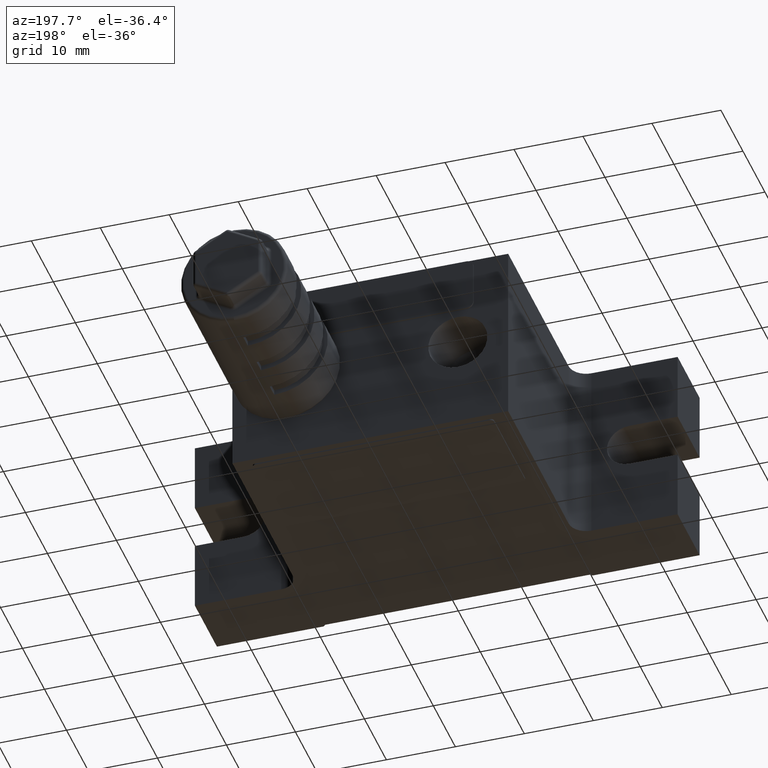
[diagram: clean part render]
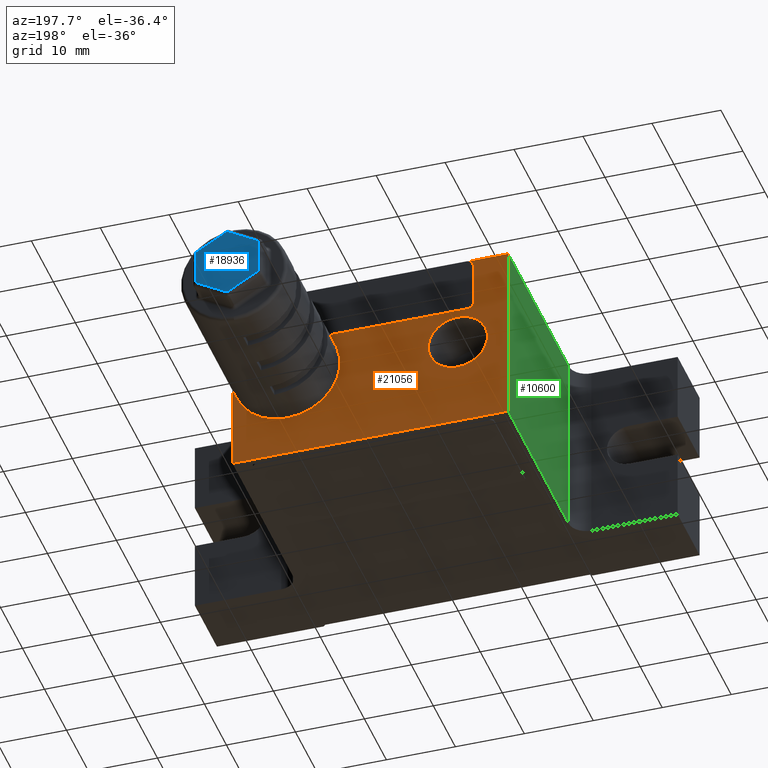
[diagram: same view with three faces highlighted in distinct colors, each labeled with its STEP entity id]
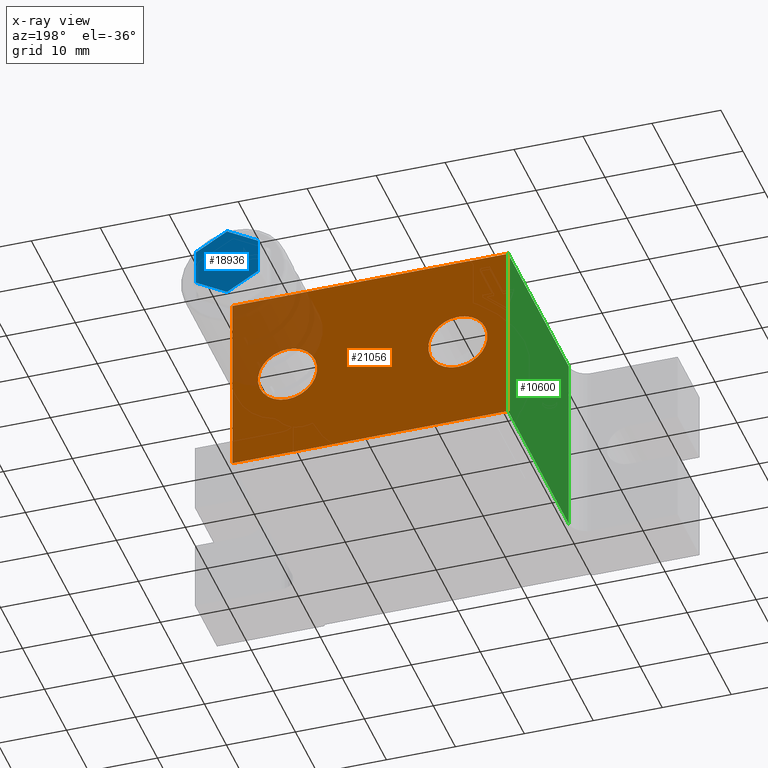
[diagram: x-ray of the same camera — body ghosted, the three highlighted faces saturated]
A machine part, auxiliary view with three faces highlighted in distinct colors.
The next image is the same camera in x-ray (body ghosted, the three faces saturated) — at least one of them is partly hidden behind the body in this view.
Their STEP definitions:

[orange] entity #21056 — the highlighted planar face has unit normal (0, -1, 0).
#318 = DIRECTION ( 'NONE',  ( 0.0000000000000000000, 0.0000000000000000000, 1.000000000000000000 ) ) ;
#451 = VERTEX_POINT ( 'NONE', #15469 ) ;
#476 = CARTESIAN_POINT ( 'NONE',  ( -20.00000000000000000, 20.00000000000000000, 13.50000000000000000 ) ) ;
#693 = CARTESIAN_POINT ( 'NONE',  ( -12.69999999999999900, 20.00000000000000000, 0.0000000000000000000 ) ) ;
#740 = DIRECTION ( 'NONE',  ( 0.0000000000000000000, 0.0000000000000000000, 1.000000000000000000 ) ) ;
#1113 = CARTESIAN_POINT ( 'NONE',  ( -12.69999999999999900, 20.00000000000000000, -4.283000000000000400 ) ) ;
#1325 = VECTOR ( 'NONE', #16556, 1000.000000000000000 ) ;
#1367 = LINE ( 'NONE', #13617, #14176 ) ;
#1622 = EDGE_CURVE ( 'NONE', #20065, #451, #1367, .T. ) ;
#2252 = DIRECTION ( 'NONE',  ( 0.0000000000000000000, 1.000000000000000000, 0.0000000000000000000 ) ) ;
#2981 = CARTESIAN_POINT ( 'NONE',  ( -35.00000000000000000, 20.00000000000000000, 13.50000000000000000 ) ) ;
#3359 = EDGE_CURVE ( 'NONE', #14530, #14337, #6136, .T. ) ;
#3546 = CARTESIAN_POINT ( 'NONE',  ( -35.00000000000000000, 20.00000000000000000, 13.50000000000000000 ) ) ;
#3599 = AXIS2_PLACEMENT_3D ( 'NONE', #21668, #10616, #10543 ) ;
#3891 = VERTEX_POINT ( 'NONE', #12279 ) ;
#4039 = ORIENTED_EDGE ( 'NONE', *, *, #15320, .F. ) ;
#4197 = VECTOR ( 'NONE', #4684, 1000.000000000000000 ) ;
#4406 = VERTEX_POINT ( 'NONE', #476 ) ;
#4684 = DIRECTION ( 'NONE',  ( -1.000000000000000000, 0.0000000000000000000, 0.0000000000000000000 ) ) ;
#5612 = LINE ( 'NONE', #2981, #4197 ) ;
#5635 = EDGE_CURVE ( 'NONE', #20536, #4406, #14415, .T. ) ;
#6136 = CIRCLE ( 'NONE', #14392, 4.283000000000000400 ) ;
#6434 = EDGE_LOOP ( 'NONE', ( #4039, #20751, #18078, #17371 ) ) ;
#7009 = FACE_OUTER_BOUND ( 'NONE', #6434, .T. ) ;
#7336 = DIRECTION ( 'NONE',  ( 0.0000000000000000000, 0.0000000000000000000, -1.000000000000000000 ) ) ;
#8173 = CIRCLE ( 'NONE', #3599, 4.283000000000000400 ) ;
#8726 = DIRECTION ( 'NONE',  ( -1.000000000000000000, 0.0000000000000000000, 0.0000000000000000000 ) ) ;
#8962 = EDGE_CURVE ( 'NONE', #3891, #9326, #12260, .T. ) ;
#9154 = ORIENTED_EDGE ( 'NONE', *, *, #13190, .F. ) ;
#9326 = VERTEX_POINT ( 'NONE', #22069 ) ;
#9530 = EDGE_LOOP ( 'NONE', ( #13745, #21997 ) ) ;
#10543 = DIRECTION ( 'NONE',  ( 0.0000000000000000000, 0.0000000000000000000, 1.000000000000000000 ) ) ;
#10616 = DIRECTION ( 'NONE',  ( 0.0000000000000000000, 1.000000000000000000, 0.0000000000000000000 ) ) ;
#10895 = PLANE ( 'NONE',  #15391 ) ;
#12260 = CIRCLE ( 'NONE', #12794, 4.283000000000000400 ) ;
#12279 = CARTESIAN_POINT ( 'NONE',  ( 12.00000000000000000, 20.00000000000000000, -4.283000000000000400 ) ) ;
#12794 = AXIS2_PLACEMENT_3D ( 'NONE', #16778, #22324, #318 ) ;
#13190 = EDGE_CURVE ( 'NONE', #14337, #14530, #19997, .T. ) ;
#13271 = LINE ( 'NONE', #23499, #15588 ) ;
#13503 = DIRECTION ( 'NONE',  ( 0.0000000000000000000, 1.000000000000000000, 0.0000000000000000000 ) ) ;
#13617 = CARTESIAN_POINT ( 'NONE',  ( 20.00000000000000000, 20.00000000000000000, -13.50000000000000000 ) ) ;
#13745 = ORIENTED_EDGE ( 'NONE', *, *, #14997, .F. ) ;
#14176 = VECTOR ( 'NONE', #19040, 1000.000000000000000 ) ;
#14337 = VERTEX_POINT ( 'NONE', #1113 ) ;
#14350 = DIRECTION ( 'NONE',  ( 0.0000000000000000000, -1.000000000000000000, 0.0000000000000000000 ) ) ;
#14392 = AXIS2_PLACEMENT_3D ( 'NONE', #22583, #2252, #740 ) ;
#14415 = LINE ( 'NONE', #20185, #1325 ) ;
#14486 = CARTESIAN_POINT ( 'NONE',  ( 20.00000000000000000, 20.00000000000000000, -13.50000000000000000 ) ) ;
#14530 = VERTEX_POINT ( 'NONE', #17678 ) ;
#14997 = EDGE_CURVE ( 'NONE', #9326, #3891, #8173, .T. ) ;
#15266 = FACE_BOUND ( 'NONE', #15786, .T. ) ;
#15320 = EDGE_CURVE ( 'NONE', #451, #4406, #5612, .T. ) ;
#15391 = AXIS2_PLACEMENT_3D ( 'NONE', #3546, #14350, #7336 ) ;
#15469 = CARTESIAN_POINT ( 'NONE',  ( 20.00000000000000000, 20.00000000000000000, 13.50000000000000000 ) ) ;
#15588 = VECTOR ( 'NONE', #8726, 1000.000000000000000 ) ;
#15786 = EDGE_LOOP ( 'NONE', ( #18308, #9154 ) ) ;
#16556 = DIRECTION ( 'NONE',  ( 0.0000000000000000000, 0.0000000000000000000, 1.000000000000000000 ) ) ;
#16778 = CARTESIAN_POINT ( 'NONE',  ( 12.00000000000000000, 20.00000000000000000, 0.0000000000000000000 ) ) ;
#16807 = AXIS2_PLACEMENT_3D ( 'NONE', #693, #13503, #20877 ) ;
#17371 = ORIENTED_EDGE ( 'NONE', *, *, #5635, .T. ) ;
#17678 = CARTESIAN_POINT ( 'NONE',  ( -12.69999999999999900, 20.00000000000000000, 4.283000000000000400 ) ) ;
#18078 = ORIENTED_EDGE ( 'NONE', *, *, #20438, .T. ) ;
#18308 = ORIENTED_EDGE ( 'NONE', *, *, #3359, .F. ) ;
#19040 = DIRECTION ( 'NONE',  ( 0.0000000000000000000, 0.0000000000000000000, 1.000000000000000000 ) ) ;
#19997 = CIRCLE ( 'NONE', #16807, 4.283000000000000400 ) ;
#20055 = CARTESIAN_POINT ( 'NONE',  ( -20.00000000000000000, 20.00000000000000000, -13.50000000000000000 ) ) ;
#20065 = VERTEX_POINT ( 'NONE', #14486 ) ;
#20185 = CARTESIAN_POINT ( 'NONE',  ( -20.00000000000000000, 20.00000000000000000, -13.50000000000000000 ) ) ;
#20438 = EDGE_CURVE ( 'NONE', #20065, #20536, #13271, .T. ) ;
#20536 = VERTEX_POINT ( 'NONE', #20055 ) ;
#20751 = ORIENTED_EDGE ( 'NONE', *, *, #1622, .F. ) ;
#20877 = DIRECTION ( 'NONE',  ( 0.0000000000000000000, 0.0000000000000000000, 1.000000000000000000 ) ) ;
#21056 = ADVANCED_FACE ( 'NONE', ( #22983, #15266, #7009 ), #10895, .F. ) ;
#21668 = CARTESIAN_POINT ( 'NONE',  ( 12.00000000000000000, 20.00000000000000000, 0.0000000000000000000 ) ) ;
#21997 = ORIENTED_EDGE ( 'NONE', *, *, #8962, .F. ) ;
#22069 = CARTESIAN_POINT ( 'NONE',  ( 12.00000000000000000, 20.00000000000000000, 4.283000000000000400 ) ) ;
#22324 = DIRECTION ( 'NONE',  ( 0.0000000000000000000, 1.000000000000000000, 0.0000000000000000000 ) ) ;
#22583 = CARTESIAN_POINT ( 'NONE',  ( -12.69999999999999900, 20.00000000000000000, 0.0000000000000000000 ) ) ;
#22983 = FACE_BOUND ( 'NONE', #9530, .T. ) ;
#23499 = CARTESIAN_POINT ( 'NONE',  ( -35.00000000000000000, 20.00000000000000000, -13.50000000000000000 ) ) ;

[blue] entity #18936 — the highlighted planar face has unit normal (0, -1, 0).
#71 = ORIENTED_EDGE ( 'NONE', *, *, #8122, .T. ) ;
#104 = CARTESIAN_POINT ( 'NONE',  ( 19.25000000000000000, 47.50000000000000000, 1.010362971081816100 ) ) ;
#392 = DIRECTION ( 'NONE',  ( -2.983724378680110200E-016, 2.111368100172629900E-017, 1.000000000000000000 ) ) ;
#697 = ORIENTED_EDGE ( 'NONE', *, *, #3444, .T. ) ;
#1179 = CARTESIAN_POINT ( 'NONE',  ( 12.00000000000000000, 47.50000000000000000, -5.196152422706670200 ) ) ;
#1582 = VECTOR ( 'NONE', #13547, 999.9999999999998900 ) ;
#1605 = EDGE_CURVE ( 'NONE', #3137, #15630, #7058, .T. ) ;
#2899 = LINE ( 'NONE', #11800, #21743 ) ;
#3137 = VERTEX_POINT ( 'NONE', #7060 ) ;
#3444 = EDGE_CURVE ( 'NONE', #15630, #11893, #15249, .T. ) ;
#5000 = LINE ( 'NONE', #6758, #14394 ) ;
#5182 = CARTESIAN_POINT ( 'NONE',  ( 7.500000000000000000, 47.50000000000000000, -2.598076211353330200 ) ) ;
#5796 = DIRECTION ( 'NONE',  ( -2.983724378680110200E-016, 2.111368100172629900E-017, 1.000000000000000000 ) ) ;
#6429 = EDGE_CURVE ( 'NONE', #11893, #9254, #5000, .T. ) ;
#6758 = CARTESIAN_POINT ( 'NONE',  ( 14.75000000000000000, 47.50000000000000000, -6.783865662978110200 ) ) ;
#7058 = LINE ( 'NONE', #9966, #8182 ) ;
#7060 = CARTESIAN_POINT ( 'NONE',  ( 16.50000000000000000, 47.50000000000000000, 2.598076211353289800 ) ) ;
#7310 = DIRECTION ( 'NONE',  ( 5.228563909572968500E-017, -1.000000000000000000, 2.111368100172631500E-017 ) ) ;
#7608 = PLANE ( 'NONE',  #22264 ) ;
#8122 = EDGE_CURVE ( 'NONE', #14282, #14903, #13432, .T. ) ;
#8182 = VECTOR ( 'NONE', #11773, 1000.000000000000000 ) ;
#8570 = DIRECTION ( 'NONE',  ( -0.8660254037844387100, 5.583753221087177900E-017, 0.4999999999999998900 ) ) ;
#8730 = EDGE_CURVE ( 'NONE', #9254, #14282, #2899, .T. ) ;
#9254 = VERTEX_POINT ( 'NONE', #5182 ) ;
#9966 = CARTESIAN_POINT ( 'NONE',  ( 16.50000000000000000, 47.50000000000000000, -2.886751345948165100 ) ) ;
#10028 = DIRECTION ( 'NONE',  ( 0.8660254037844387100, -3.472385120914394200E-017, 0.4999999999999998900 ) ) ;
#10379 = CARTESIAN_POINT ( 'NONE',  ( 16.50000000000000000, 47.50000000000000000, -2.598076211353340000 ) ) ;
#11111 = CARTESIAN_POINT ( 'NONE',  ( 17.00000000000000000, 47.50000000000000000, -2.886751345948150000 ) ) ;
#11535 = CARTESIAN_POINT ( 'NONE',  ( 16.75000000000000000, 47.50000000000000000, -2.453738644055914800 ) ) ;
#11773 = DIRECTION ( 'NONE',  ( 5.204170427930419300E-016, -2.111368100172310100E-017, -1.000000000000000000 ) ) ;
#11800 = CARTESIAN_POINT ( 'NONE',  ( 7.500000000000000000, 47.50000000000000000, -2.886751345948134900 ) ) ;
#11893 = VERTEX_POINT ( 'NONE', #1179 ) ;
#11983 = CARTESIAN_POINT ( 'NONE',  ( 12.00000000000000000, 47.50000000000000000, 5.196152422706630200 ) ) ;
#12817 = DIRECTION ( 'NONE',  ( 0.8660254037844390400, -5.583753221087012700E-017, -0.4999999999999995000 ) ) ;
#13432 = LINE ( 'NONE', #19101, #19452 ) ;
#13547 = DIRECTION ( 'NONE',  ( -0.8660254037844390400, 3.472385120914386200E-017, -0.4999999999999995000 ) ) ;
#14282 = VERTEX_POINT ( 'NONE', #20899 ) ;
#14394 = VECTOR ( 'NONE', #8570, 1000.000000000000000 ) ;
#14550 = ORIENTED_EDGE ( 'NONE', *, *, #6429, .T. ) ;
#14903 = VERTEX_POINT ( 'NONE', #11983 ) ;
#15249 = LINE ( 'NONE', #11535, #1582 ) ;
#15508 = ORIENTED_EDGE ( 'NONE', *, *, #18562, .T. ) ;
#15630 = VERTEX_POINT ( 'NONE', #10379 ) ;
#17179 = FACE_OUTER_BOUND ( 'NONE', #22237, .T. ) ;
#18562 = EDGE_CURVE ( 'NONE', #14903, #3137, #18618, .T. ) ;
#18618 = LINE ( 'NONE', #104, #21529 ) ;
#18936 = ADVANCED_FACE ( 'NONE', ( #17179 ), #7608, .F. ) ;
#19101 = CARTESIAN_POINT ( 'NONE',  ( 12.25000000000000000, 47.50000000000000000, 5.340489990004040300 ) ) ;
#19452 = VECTOR ( 'NONE', #10028, 1000.000000000000000 ) ;
#20899 = CARTESIAN_POINT ( 'NONE',  ( 7.500000000000000000, 47.50000000000000000, 2.598076211353295100 ) ) ;
#21529 = VECTOR ( 'NONE', #12817, 999.9999999999998900 ) ;
#21743 = VECTOR ( 'NONE', #392, 1000.000000000000000 ) ;
#22237 = EDGE_LOOP ( 'NONE', ( #15508, #22266, #697, #14550, #23473, #71 ) ) ;
#22264 = AXIS2_PLACEMENT_3D ( 'NONE', #11111, #7310, #5796 ) ;
#22266 = ORIENTED_EDGE ( 'NONE', *, *, #1605, .T. ) ;
#23473 = ORIENTED_EDGE ( 'NONE', *, *, #8730, .T. ) ;

[green] entity #10600 — the highlighted planar face has unit normal (1, 0, 0).
#167 = VERTEX_POINT ( 'NONE', #18118 ) ;
#171 = DIRECTION ( 'NONE',  ( 0.0000000000000000000, 0.0000000000000000000, -1.000000000000000000 ) ) ;
#476 = CARTESIAN_POINT ( 'NONE',  ( -20.00000000000000000, 20.00000000000000000, 13.50000000000000000 ) ) ;
#940 = EDGE_CURVE ( 'NONE', #21990, #20536, #9332, .T. ) ;
#1325 = VECTOR ( 'NONE', #16556, 1000.000000000000000 ) ;
#3695 = CARTESIAN_POINT ( 'NONE',  ( -20.00000000000000000, 20.00000000000000000, -13.50000000000000000 ) ) ;
#3790 = CARTESIAN_POINT ( 'NONE',  ( -20.00000000000000000, -7.500000000000000000, 13.50000000000000000 ) ) ;
#4406 = VERTEX_POINT ( 'NONE', #476 ) ;
#4575 = ORIENTED_EDGE ( 'NONE', *, *, #23410, .T. ) ;
#5635 = EDGE_CURVE ( 'NONE', #20536, #4406, #14415, .T. ) ;
#6675 = EDGE_LOOP ( 'NONE', ( #13671, #4575, #12625, #6701 ) ) ;
#6701 = ORIENTED_EDGE ( 'NONE', *, *, #5635, .F. ) ;
#6820 = CARTESIAN_POINT ( 'NONE',  ( -20.00000000000000000, -7.500000000000000000, -13.50000000000000000 ) ) ;
#7730 = EDGE_CURVE ( 'NONE', #167, #4406, #10888, .T. ) ;
#7764 = AXIS2_PLACEMENT_3D ( 'NONE', #3695, #14735, #171 ) ;
#8764 = VECTOR ( 'NONE', #19673, 1000.000000000000000 ) ;
#9332 = LINE ( 'NONE', #14057, #8764 ) ;
#10600 = ADVANCED_FACE ( 'NONE', ( #18485 ), #18463, .F. ) ;
#10888 = LINE ( 'NONE', #16088, #22346 ) ;
#11213 = DIRECTION ( 'NONE',  ( 0.0000000000000000000, 0.0000000000000000000, 1.000000000000000000 ) ) ;
#12625 = ORIENTED_EDGE ( 'NONE', *, *, #7730, .T. ) ;
#13671 = ORIENTED_EDGE ( 'NONE', *, *, #940, .F. ) ;
#14057 = CARTESIAN_POINT ( 'NONE',  ( -20.00000000000000000, 20.00000000000000000, -13.50000000000000000 ) ) ;
#14415 = LINE ( 'NONE', #20185, #1325 ) ;
#14573 = LINE ( 'NONE', #3790, #21747 ) ;
#14735 = DIRECTION ( 'NONE',  ( 1.000000000000000000, 0.0000000000000000000, 0.0000000000000000000 ) ) ;
#16088 = CARTESIAN_POINT ( 'NONE',  ( -20.00000000000000000, 20.00000000000000000, 13.50000000000000000 ) ) ;
#16556 = DIRECTION ( 'NONE',  ( 0.0000000000000000000, 0.0000000000000000000, 1.000000000000000000 ) ) ;
#18084 = DIRECTION ( 'NONE',  ( 0.0000000000000000000, 1.000000000000000000, 0.0000000000000000000 ) ) ;
#18118 = CARTESIAN_POINT ( 'NONE',  ( -20.00000000000000000, -7.500000000000000000, 13.50000000000000000 ) ) ;
#18463 = PLANE ( 'NONE',  #7764 ) ;
#18485 = FACE_OUTER_BOUND ( 'NONE', #6675, .T. ) ;
#19673 = DIRECTION ( 'NONE',  ( 0.0000000000000000000, 1.000000000000000000, 0.0000000000000000000 ) ) ;
#20055 = CARTESIAN_POINT ( 'NONE',  ( -20.00000000000000000, 20.00000000000000000, -13.50000000000000000 ) ) ;
#20185 = CARTESIAN_POINT ( 'NONE',  ( -20.00000000000000000, 20.00000000000000000, -13.50000000000000000 ) ) ;
#20536 = VERTEX_POINT ( 'NONE', #20055 ) ;
#21747 = VECTOR ( 'NONE', #11213, 1000.000000000000000 ) ;
#21990 = VERTEX_POINT ( 'NONE', #6820 ) ;
#22346 = VECTOR ( 'NONE', #18084, 1000.000000000000000 ) ;
#23410 = EDGE_CURVE ( 'NONE', #21990, #167, #14573, .T. ) ;